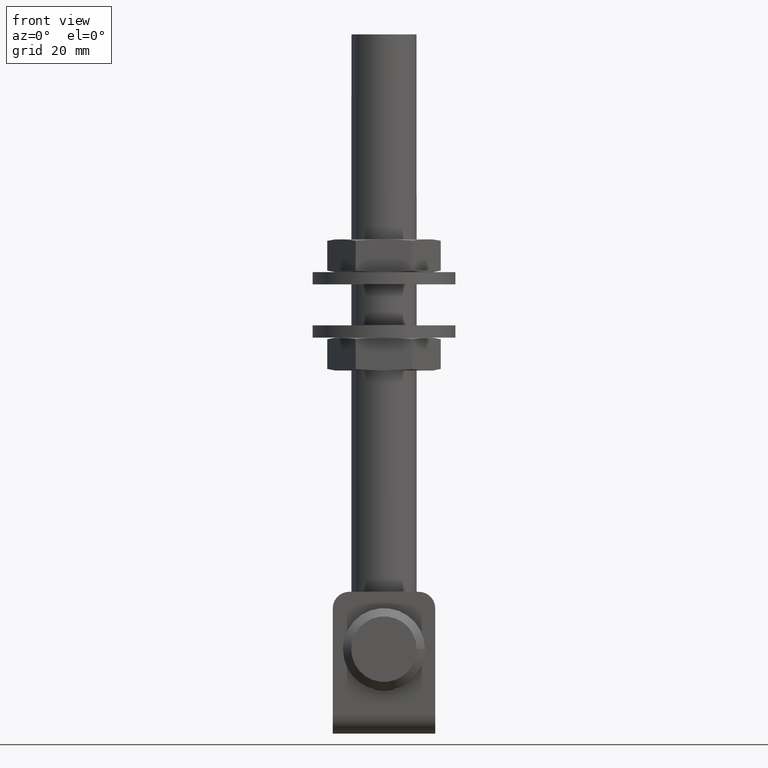
[diagram: clean part render]
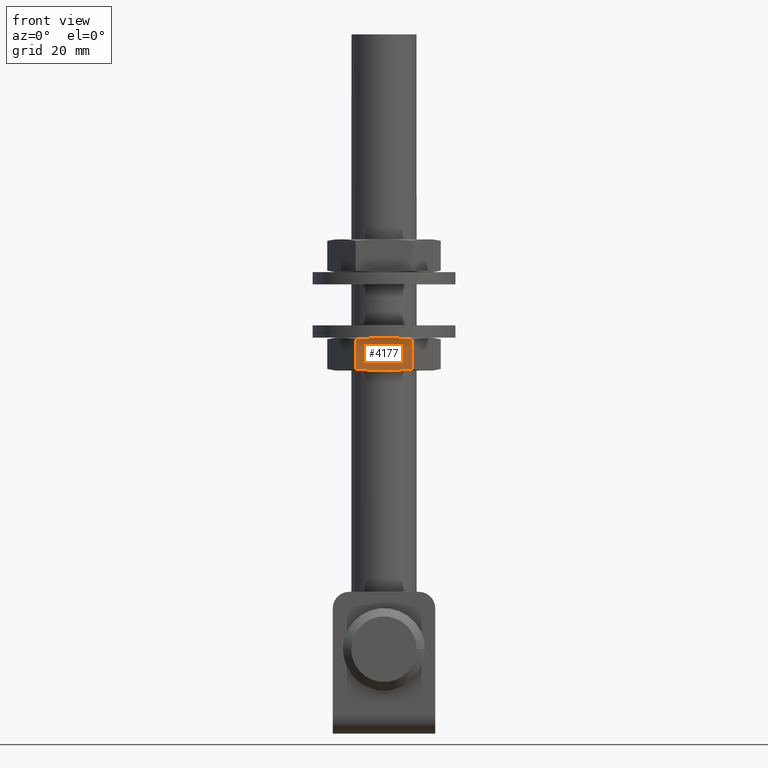
[diagram: same view with one face highlighted and labeled with its STEP entity id]
A machine part, front view. The second image highlights one B-rep face of the part: STEP entity #4177.
In plain terms, the highlighted planar face has unit normal (0, 1, -0).
Its self-contained STEP definition (entity closure, byte-faithful):
#206 = PLANE ( 'NONE',  #5870 ) ;
#219 = VERTEX_POINT ( 'NONE', #13374 ) ;
#340 = ORIENTED_EDGE ( 'NONE', *, *, #13397, .F. ) ;
#1255 = CARTESIAN_POINT ( 'NONE',  ( 13.85640646055102998, 3.628718707889794892, -1.004649244934455523E-16 ) ) ;
#1440 = DIRECTION ( 'NONE',  ( -0.000000000000000000, -1.000000000000000000, -0.000000000000000000 ) ) ;
#2391 = ORIENTED_EDGE ( 'NONE', *, *, #7271, .T. ) ;
#2403 = CARTESIAN_POINT ( 'NONE',  ( 11.54700538379205810, 3.966052062162726433, 4.000000000000870415 ) ) ;
#2544 = CARTESIAN_POINT ( 'NONE',  ( 8.082903768654627896, -3.837949539118695963, 10.00000000000038547 ) ) ;
#2727 = ORIENTED_EDGE ( 'NONE', *, *, #16183, .T. ) ;
#3041 = ORIENTED_EDGE ( 'NONE', *, *, #14561, .T. ) ;
#3516 = ORIENTED_EDGE ( 'NONE', *, *, #12614, .T. ) ;
#3760 = CARTESIAN_POINT ( 'NONE',  ( 10.96965511460231291, -4.000000000000048850, 5.000000000001085354 ) ) ;
#3819 = CARTESIAN_POINT ( 'NONE',  ( 10.39230484541251087, -4.000000000000049738, 6.000000000001272760 ) ) ;
#3894 = CARTESIAN_POINT ( 'NONE',  ( 9.814954576223083649, -4.000000000000023093, 7.000000000001074696 ) ) ;
#4177 = ADVANCED_FACE ( 'NONE', ( #4593 ), #206, .F. ) ;
#4385 = CARTESIAN_POINT ( 'NONE',  ( 9.237604307033596029, 3.966052062162709113, 8.000000000000849099 ) ) ;
#4527 = DIRECTION ( 'NONE',  ( -0.000000000000000000, -1.000000000000000000, -0.000000000000000000 ) ) ;
#4593 = FACE_OUTER_BOUND ( 'NONE', #16137, .T. ) ;
#4677 = B_SPLINE_CURVE_WITH_KNOTS ( 'NONE', 3,
 ( #3819, #3760, #5076, #12949, #16832, #6403 ),
 .UNSPECIFIED., .F., .F.,
 ( 4, 2, 4 ),
 ( 0.006928434170381568037, 0.01039253578552006875, 0.01385663740065856860 ),
 .UNSPECIFIED. ) ;
#4750 = EDGE_CURVE ( 'NONE', #12879, #9815, #10245, .T. ) ;
#4843 = VERTEX_POINT ( 'NONE', #8365 ) ;
#5076 = CARTESIAN_POINT ( 'NONE',  ( 11.54700538379205810, -3.966052062162728209, 4.000000000000865974 ) ) ;
#5303 = B_SPLINE_CURVE_WITH_KNOTS ( 'NONE', 3,
 ( #1255, #6382, #11570, #2403, #15549, #14460 ),
 .UNSPECIFIED., .F., .F.,
 ( 4, 2, 4 ),
 ( 2.309401076758965243E-07, 0.003464332555246175081, 0.006928434170384674060 ),
 .UNSPECIFIED. ) ;
#5398 = CARTESIAN_POINT ( 'NONE',  ( 13.85640646055102998, 4.000000000000000000, 0.000000000000000000 ) ) ;
#5459 = CARTESIAN_POINT ( 'NONE',  ( 10.39230484541251087, 4.000000000000049738, 6.000000000001272760 ) ) ;
#5701 = VECTOR ( 'NONE', #1440, 1000.000000000000000 ) ;
#5716 = CARTESIAN_POINT ( 'NONE',  ( 6.928203230275655322, 3.628718707889998285, 11.99999999999992895 ) ) ;
#5870 = AXIS2_PLACEMENT_3D ( 'NONE', #8071, #15852, #16077 ) ;
#6382 = CARTESIAN_POINT ( 'NONE',  ( 13.27905619136128657, 3.744188761727770931, 1.000000000000216493 ) ) ;
#6403 = CARTESIAN_POINT ( 'NONE',  ( 13.85640646055102998, -3.628718707889794892, 2.261045755260923539E-17 ) ) ;
#6981 = CARTESIAN_POINT ( 'NONE',  ( 7.505553499465141165, 3.744188761727889059, 11.00000000000015810 ) ) ;
#7271 = EDGE_CURVE ( 'NONE', #11832, #12879, #5303, .T. ) ;
#8071 = CARTESIAN_POINT ( 'NONE',  ( 6.928203230275655322, 4.000000000000000000, 11.99999999999992895 ) ) ;
#8108 = CARTESIAN_POINT ( 'NONE',  ( 8.082903768654624344, 3.837949539118694631, 10.00000000000038902 ) ) ;
#8365 = CARTESIAN_POINT ( 'NONE',  ( 13.85640646055102998, -3.628718707889794892, 2.261045755260923539E-17 ) ) ;
#8452 = CARTESIAN_POINT ( 'NONE',  ( 6.928203230275655322, 4.000000000000000000, 11.99999999999992895 ) ) ;
#8963 = CARTESIAN_POINT ( 'NONE',  ( 13.85640646055102998, 3.628718707889794892, -1.004649244934455523E-16 ) ) ;
#9815 = VERTEX_POINT ( 'NONE', #14201 ) ;
#10181 = LINE ( 'NONE', #8452, #11402 ) ;
#10245 = B_SPLINE_CURVE_WITH_KNOTS ( 'NONE', 3,
 ( #5459, #11989, #4385, #8108, #6981, #5716 ),
 .UNSPECIFIED., .F., .F.,
 ( 4, 2, 4 ),
 ( 0.006928434170384674060, 0.01039253578552162133, 0.01385663740065856686 ),
 .UNSPECIFIED. ) ;
#11402 = VECTOR ( 'NONE', #4527, 1000.000000000000000 ) ;
#11570 = CARTESIAN_POINT ( 'NONE',  ( 12.70170592217154848, 3.837949539118645781, 2.000000000000435207 ) ) ;
#11722 = CARTESIAN_POINT ( 'NONE',  ( 9.237604307033597806, -3.966052062162707781, 8.000000000000845546 ) ) ;
#11832 = VERTEX_POINT ( 'NONE', #8963 ) ;
#11989 = CARTESIAN_POINT ( 'NONE',  ( 9.814954576223083649, 4.000000000000023093, 7.000000000001076472 ) ) ;
#12614 = EDGE_CURVE ( 'NONE', #9815, #15407, #10181, .T. ) ;
#12669 = LINE ( 'NONE', #5398, #5701 ) ;
#12879 = VERTEX_POINT ( 'NONE', #13175 ) ;
#12949 = CARTESIAN_POINT ( 'NONE',  ( 12.70170592217154670, -3.837949539118643560, 2.000000000000430322 ) ) ;
#13063 = CARTESIAN_POINT ( 'NONE',  ( 10.39230484541251087, -4.000000000000049738, 6.000000000001272760 ) ) ;
#13175 = CARTESIAN_POINT ( 'NONE',  ( 10.39230484541251087, 4.000000000000049738, 6.000000000001272760 ) ) ;
#13266 = B_SPLINE_CURVE_WITH_KNOTS ( 'NONE', 3,
 ( #16887, #14208, #2544, #11722, #3894, #13063 ),
 .UNSPECIFIED., .F., .F.,
 ( 4, 2, 4 ),
 ( 2.309401076763871681E-07, 0.003464332555244622504, 0.006928434170381568037 ),
 .UNSPECIFIED. ) ;
#13374 = CARTESIAN_POINT ( 'NONE',  ( 10.39230484541251087, -4.000000000000049738, 6.000000000001272760 ) ) ;
#13397 = EDGE_CURVE ( 'NONE', #11832, #4843, #12669, .T. ) ;
#14201 = CARTESIAN_POINT ( 'NONE',  ( 6.928203230275655322, 3.628718707889998285, 11.99999999999992895 ) ) ;
#14208 = CARTESIAN_POINT ( 'NONE',  ( 7.505553499465142941, -3.744188761727889503, 11.00000000000015632 ) ) ;
#14460 = CARTESIAN_POINT ( 'NONE',  ( 10.39230484541251087, 4.000000000000049738, 6.000000000001272760 ) ) ;
#14561 = EDGE_CURVE ( 'NONE', #219, #4843, #4677, .T. ) ;
#15373 = CARTESIAN_POINT ( 'NONE',  ( 6.928203230275655322, -3.628718707889998285, 11.99999999999992895 ) ) ;
#15407 = VERTEX_POINT ( 'NONE', #15373 ) ;
#15549 = CARTESIAN_POINT ( 'NONE',  ( 10.96965511460231291, 4.000000000000049738, 5.000000000001087130 ) ) ;
#15852 = DIRECTION ( 'NONE',  ( -0.8660254037844415942, 0.000000000000000000, -0.4999999999999949485 ) ) ;
#16077 = DIRECTION ( 'NONE',  ( -0.4999999999999949485, 0.000000000000000000, 0.8660254037844415942 ) ) ;
#16137 = EDGE_LOOP ( 'NONE', ( #3516, #2727, #3041, #340, #2391, #16259 ) ) ;
#16183 = EDGE_CURVE ( 'NONE', #15407, #219, #13266, .T. ) ;
#16259 = ORIENTED_EDGE ( 'NONE', *, *, #4750, .T. ) ;
#16832 = CARTESIAN_POINT ( 'NONE',  ( 13.27905619136129012, -3.744188761727770931, 1.000000000000213829 ) ) ;
#16887 = CARTESIAN_POINT ( 'NONE',  ( 6.928203230275655322, -3.628718707889998285, 11.99999999999992895 ) ) ;